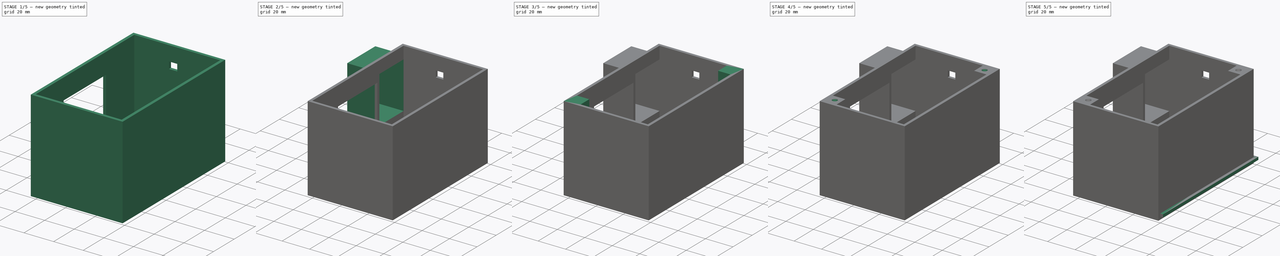
[diagram: build sequence overview — one tinted view per stage of 5, left to right]
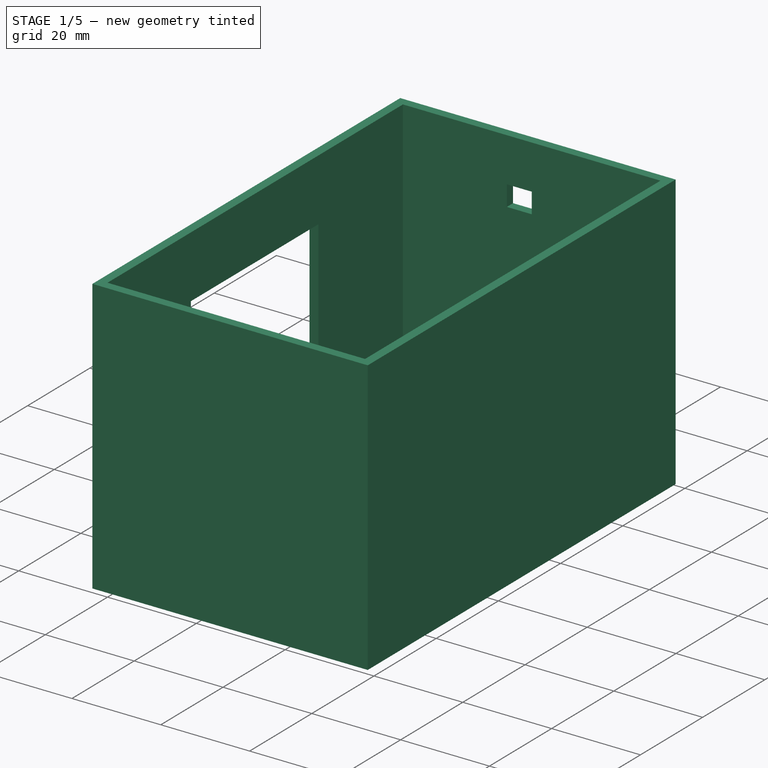
[diagram: stage 1 of 5 — iso view after this stage's code; geometry added in this stage tinted green]
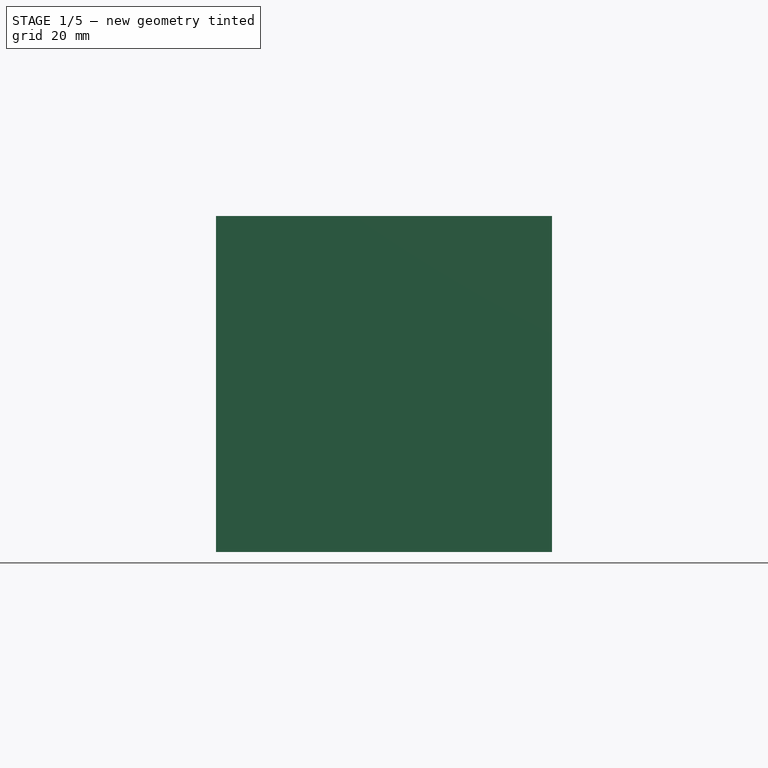
[diagram: stage 1 of 5 — front view after this stage's code; geometry added in this stage tinted green]
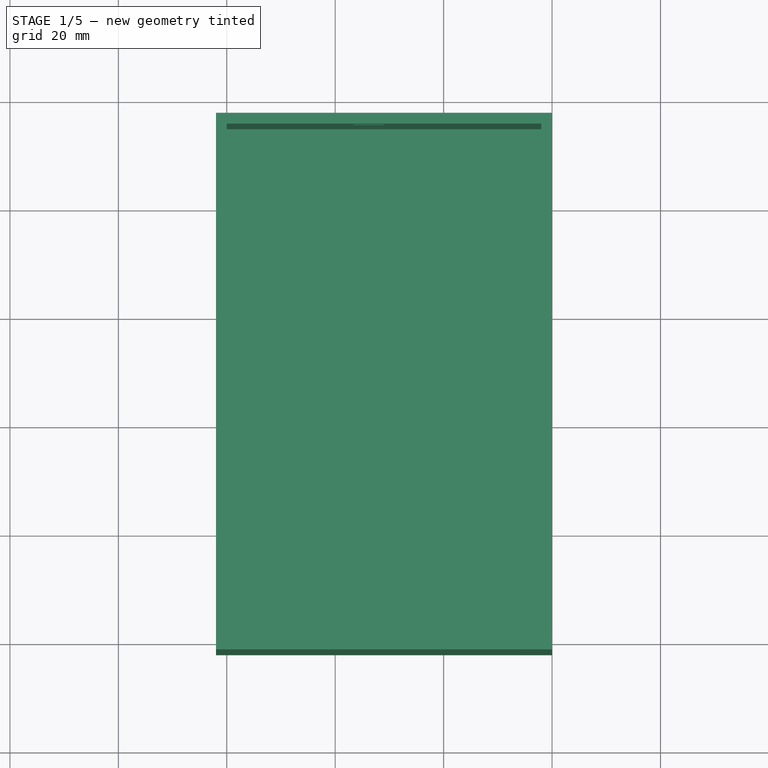
[diagram: stage 1 of 5 — top view after this stage's code; geometry added in this stage tinted green]
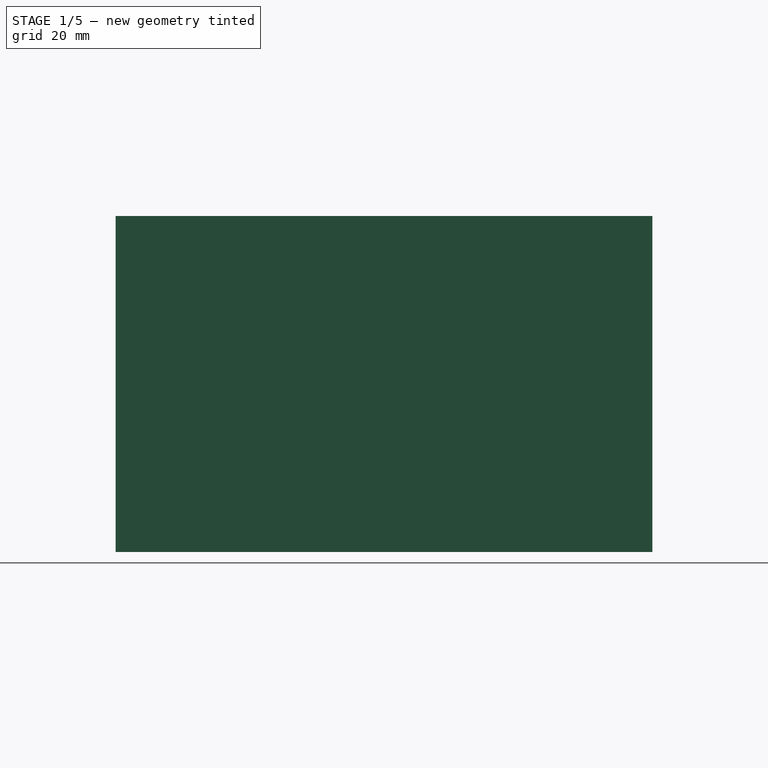
[diagram: stage 1 of 5 — right view after this stage's code; geometry added in this stage tinted green]
FCSTD DOCUMENT  (FreeCAD 1.0R38641 +468 (Git))
Label: air_quality_sensor
License: All rights reserved
LicenseURL: http://en.wikipedia.org/wiki/All_rights_reserved
objects: Sketcher::SketchObject×16, PartDesign::Pad×10, PartDesign::Pocket×6, PartDesign::Body×2, PartDesign::Draft×2, PartDesign::Chamfer×2, PartDesign::Thickness×1, PartDesign::Fillet×1
note: 100 computed .brp shape members not serialized (recipe doc carries the construction recipe); baked Part::Feature solids carry a one-line shape summary decoded from their .brp

FEATURE [Sketcher::SketchObject] Sketch
  ArcFitTolerance = 1e-06
  AttachmentSupport = -> [XY_Plane]
  FullyConstrained = true
  MakeInternals = false
  MapMode = 5
  sketch-geometry (4):
    g0: LineSegment StartX=0 StartY=0 StartZ=0 EndX=58 EndY=0 EndZ=0
    g1: LineSegment StartX=58 StartY=0 StartZ=0 EndX=58 EndY=95 EndZ=0
    g2: LineSegment StartX=58 StartY=95 StartZ=0 EndX=0 EndY=95 EndZ=0
    g3: LineSegment StartX=0 StartY=95 StartZ=0 EndX=0 EndY=0 EndZ=0
  constraints (11):
    c: Coincident(g0,g1)
    c: Coincident(g1,g2)
    c: Coincident(g2,g3)
    c: Coincident(g3,g0)
    c: Horizontal(g0)
    c: Horizontal(g2)
    c: Vertical(g1)
    c: Vertical(g3)
    c: Coincident(g0,g-1)
    c: Distance(g1,g1) = 95
    c: Distance(g2,g2) = 58
FEATURE [PartDesign::Pad] Pad
  Direction = (0,0,1)
  Length = 60
  Length2 = 10
  Profile = -> Sketch
  ReferenceAxis = -> Sketch [N_Axis]
  Refine = true
  Suppressed = false
  Type = 0
FEATURE [PartDesign::Thickness] Thickness
  Base = -> Pad [Face6]
  BaseFeature = -> Pad
  Intersection = false
  Join = 1
  Mode = 0
  Refine = true
  SupportTransform = false
  Suppressed = false
  Value = 2
FEATURE [Sketcher::SketchObject] Sketch002
  ArcFitTolerance = 1e-06
  FullyConstrained = true
  MakeInternals = false
  MapMode = 5
  Placement = pos=(0,97,0) rot=(0,0.707107,0.707107;3.14159rad)
  sketch-geometry (4):
    g0: LineSegment StartX=-29 StartY=50 StartZ=0 EndX=-29 EndY=45.4 EndZ=0
    g1: LineSegment StartX=-29 StartY=45.4 StartZ=0 EndX=-23.4 EndY=45.4 EndZ=0
    g2: LineSegment StartX=-23.4 StartY=45.4 StartZ=0 EndX=-23.4 EndY=50 EndZ=0
    g3: LineSegment StartX=-23.4 StartY=50 StartZ=0 EndX=-29 EndY=50 EndZ=0
  constraints (12):
    c: Coincident(g0,g1)
    c: Coincident(g1,g2)
    c: Coincident(g2,g3)
    c: Coincident(g3,g0)
    c: Vertical(g0)
    c: Vertical(g2)
    c: Horizontal(g1)
    c: Horizontal(g3)
    c: Distance(g1,g1) = 5.6
    c: Distance(g2,g2) = 4.6
    c: Distance(g0,g-4) = 22
    c: Distance(g2,g-3) = 30
FEATURE [PartDesign::Pocket] Pocket
  BaseFeature = -> Thickness
  Direction = (0,-1,2e-16)
  Length = 5
  Length2 = 5
  Profile = -> Sketch002
  ReferenceAxis = -> Sketch002 [N_Axis]
  Refine = true
  Suppressed = false
  Type = 2
FEATURE [Sketcher::SketchObject] Sketch003
  ArcFitTolerance = 1e-06
  AttachmentSupport = -> [Pocket]
  ExternalGeometry = -> [Pocket]
  FullyConstrained = true
  MakeInternals = false
  MapMode = 5
  Placement = pos=(-2,0,0) rot=(0.57735,-0.57735,-0.57735;2.0944rad)
  sketch-geometry (4):
    g0: LineSegment StartX=-67.8 StartY=46 StartZ=0 EndX=-67.8 EndY=7 EndZ=0
    g1: LineSegment StartX=-67.8 StartY=7 StartZ=0 EndX=-26.8 EndY=7 EndZ=0
    g2: LineSegment StartX=-26.8 StartY=7 StartZ=0 EndX=-26.8 EndY=46 EndZ=0
    g3: LineSegment StartX=-26.8 StartY=46 StartZ=0 EndX=-67.8 EndY=46 EndZ=0
  constraints (12):
    c: Coincident(g0,g1)
    c: Coincident(g1,g2)
    c: Coincident(g2,g3)
    c: Coincident(g3,g0)
    c: Vertical(g0)
    c: Vertical(g2)
    c: Horizontal(g1)
    c: Horizontal(g3)
    c: Distance(g3,g3) = 41
    c: Distance(g0,g0) = 39
    c: Distance(g0,g-5) = 29.2
    c: Distance(g0,g-6) = 9
FEATURE [PartDesign::Pocket] Pocket001
  BaseFeature = -> Pocket
  Direction = (1,0,0)
  Length = 5
  Length2 = 5
  Profile = -> Sketch003
  ReferenceAxis = -> Sketch003 [N_Axis]
  Refine = true
  Suppressed = false
  Type = 2
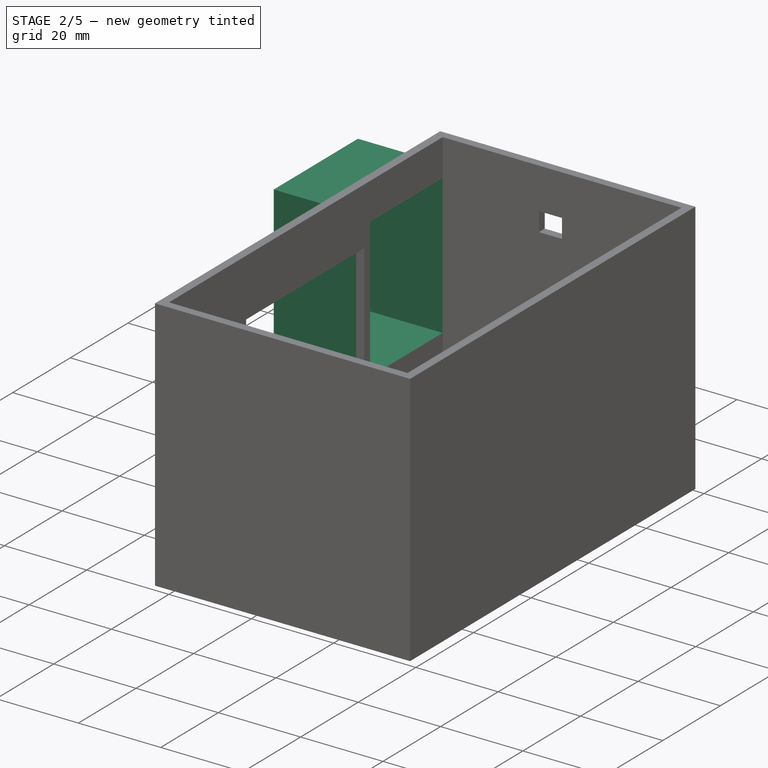
[diagram: stage 2 of 5 — iso view after this stage's code; geometry added in this stage tinted green]
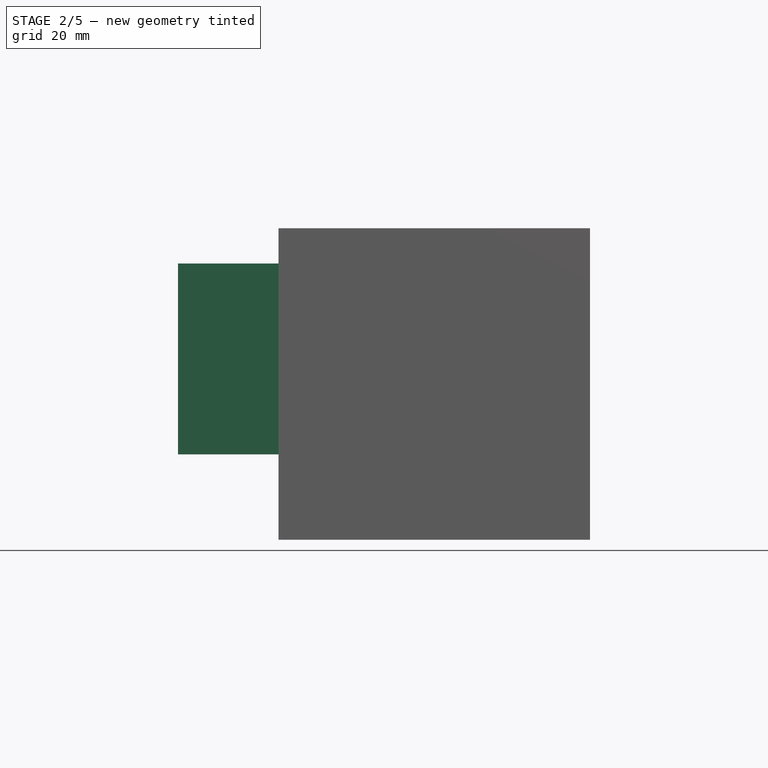
[diagram: stage 2 of 5 — front view after this stage's code; geometry added in this stage tinted green]
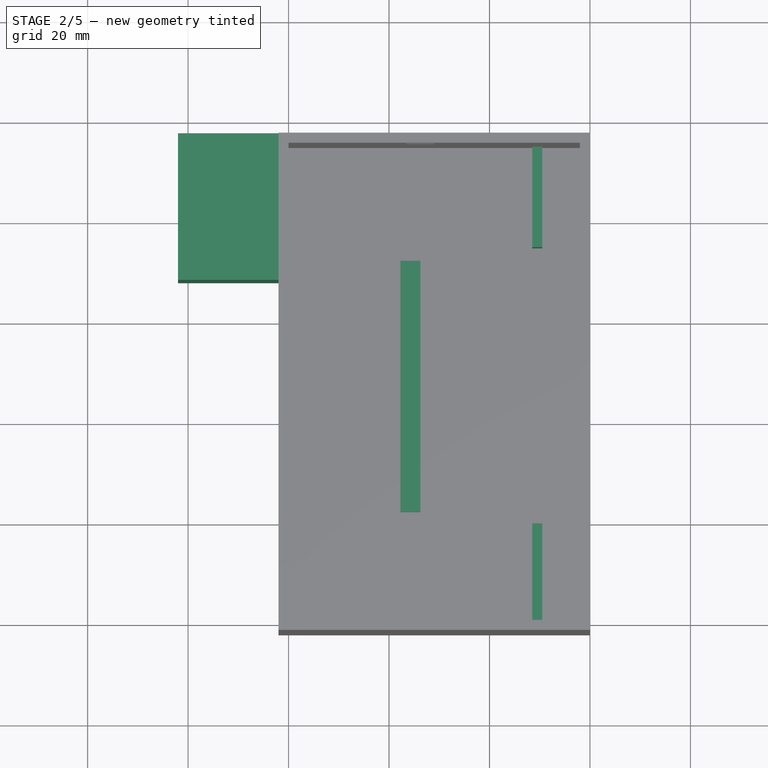
[diagram: stage 2 of 5 — top view after this stage's code; geometry added in this stage tinted green]
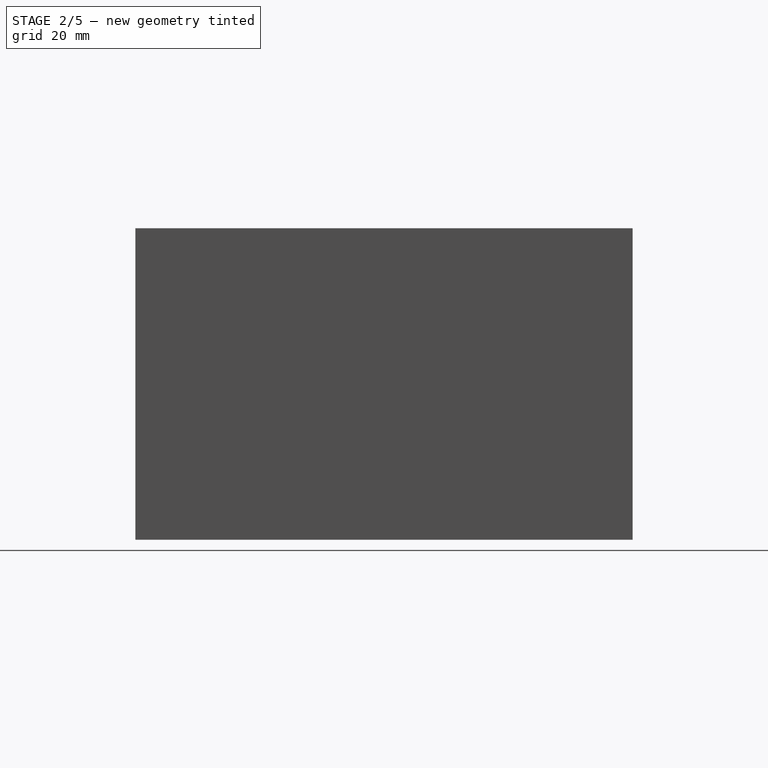
[diagram: stage 2 of 5 — right view after this stage's code; geometry added in this stage tinted green]
FEATURE [Sketcher::SketchObject] Sketch004
  ArcFitTolerance = 1e-06
  AttachmentSupport = -> [Pocket001]
  ExternalGeometry = -> [Pocket001]
  FullyConstrained = true
  MakeInternals = false
  MapMode = 5
  Placement = pos=(-2,0,0) rot=(0.57735,-0.57735,-0.57735;2.0944rad)
  sketch-geometry (4):
    g0: LineSegment StartX=-97 StartY=53 StartZ=0 EndX=-97 EndY=15 EndZ=0
    g1: LineSegment StartX=-97 StartY=15 StartZ=0 EndX=-67.8 EndY=15 EndZ=0
    g2: LineSegment StartX=-67.8 StartY=15 StartZ=0 EndX=-67.8 EndY=53 EndZ=0
    g3: LineSegment StartX=-67.8 StartY=53 StartZ=0 EndX=-97 EndY=53 EndZ=0
  constraints (12):
    c: Coincident(g0,g1)
    c: Coincident(g1,g2)
    c: Coincident(g2,g3)
    c: Coincident(g3,g0)
    c: Vertical(g0)
    c: Vertical(g2)
    c: Horizontal(g1)
    c: Horizontal(g3)
    c: PointOnObject(g0,g-4)
    c: PointOnObject(g1,g-5)
    c: DistanceY(g-5,g1) = 8
    c: DistanceY(g-5,g2) = 7
FEATURE [PartDesign::Pad] Pad002
  BaseFeature = -> Pocket001
  Direction = (-1,0,0)
  Length = 20
  Length2 = 10
  Profile = -> Sketch004
  ReferenceAxis = -> Sketch004 [N_Axis]
  Refine = true
  Suppressed = false
  Type = 0
FEATURE [Sketcher::SketchObject] Sketch005
  ArcFitTolerance = 1e-06
  AttachmentSupport = -> [Pad002]
  ExternalGeometry = -> [Pad002]
  FullyConstrained = true
  MakeInternals = false
  MapMode = 5
  Placement = pos=(-22,0,0) rot=(0.57735,-0.57735,-0.57735;2.0944rad)
  sketch-geometry (4):
    g0: LineSegment StartX=-95 StartY=51 StartZ=0 EndX=-95 EndY=17 EndZ=0
    g1: LineSegment StartX=-95 StartY=17 StartZ=0 EndX=-69.8 EndY=17 EndZ=0
    g2: LineSegment StartX=-69.8 StartY=17 StartZ=0 EndX=-69.8 EndY=51 EndZ=0
    g3: LineSegment StartX=-69.8 StartY=51 StartZ=0 EndX=-95 EndY=51 EndZ=0
  constraints (12):
    c: Coincident(g0,g1)
    c: Coincident(g1,g2)
    c: Coincident(g2,g3)
    c: Coincident(g3,g0)
    c: Vertical(g0)
    c: Vertical(g2)
    c: Horizontal(g1)
    c: Horizontal(g3)
    c: DistanceX(g-6,g0) = 2
    c: DistanceX(g2,g-4) = 2
    c: DistanceY(g0,g-6) = 2
    c: DistanceY(g-6,g0) = 2
FEATURE [PartDesign::Pocket] Pocket002
  BaseFeature = -> Pad002
  Direction = (1,0,0)
  Length = 5
  Length2 = 5
  Profile = -> Sketch005
  ReferenceAxis = -> Sketch005 [N_Axis]
  Refine = true
  Suppressed = false
  Type = 2
FEATURE [Sketcher::SketchObject] Sketch006
  ArcFitTolerance = 1e-06
  AttachmentSupport = -> [Pocket002]
  ExternalGeometry = -> [Pocket002]
  FullyConstrained = true
  MakeInternals = false
  MapMode = 5
  Placement = pos=(-22,0,0) rot=(0.57735,-0.57735,-0.57735;2.0944rad)
  sketch-geometry (4):
    g0: LineSegment StartX=-95 StartY=51 StartZ=0 EndX=-95 EndY=17 EndZ=0
    g1: LineSegment StartX=-95 StartY=17 StartZ=0 EndX=-69.8 EndY=17 EndZ=0
    g2: LineSegment StartX=-69.8 StartY=17 StartZ=0 EndX=-69.8 EndY=51 EndZ=0
    g3: LineSegment StartX=-69.8 StartY=51 StartZ=0 EndX=-95 EndY=51 EndZ=0
  constraints (9):
    c: Coincident(g0,g1)
    c: Coincident(g1,g2)
    c: Coincident(g2,g3)
    c: Coincident(g3,g0)
    c: Vertical(g2)
    c: Horizontal(g1)
    c: Coincident(g2,g-3)
    c: Coincident(g0,g-4)
    c: Coincident(g0,g-4)
FEATURE [PartDesign::Pad] Pad003
  BaseFeature = -> Pocket002
  Direction = (-1,0,0)
  Length = 2
  Length2 = 10
  Profile = -> Sketch006
  ReferenceAxis = -> Sketch006 [N_Axis]
  Refine = true
  Reversed = true
  Suppressed = false
  Type = 0
FEATURE [Sketcher::SketchObject] Sketch007
  ArcFitTolerance = 1e-06
  AttachmentSupport = -> [Pad003]
  ExternalGeometry = -> [Pad003]
  FullyConstrained = true
  MakeInternals = false
  MapMode = 5
  sketch-geometry (8):
    g0: LineSegment StartX=48.5 StartY=95 StartZ=0 EndX=48.5 EndY=75 EndZ=0
    g1: LineSegment StartX=48.5 StartY=75 StartZ=0 EndX=50.5 EndY=75 EndZ=0
    g2: LineSegment StartX=50.5 StartY=75 StartZ=0 EndX=50.5 EndY=95 EndZ=0
    g3: LineSegment StartX=50.5 StartY=95 StartZ=0 EndX=48.5 EndY=95 EndZ=0
    g4: LineSegment StartX=48.5 StartY=0 StartZ=0 EndX=50.5 EndY=0 EndZ=0
    g5: LineSegment StartX=50.5 StartY=0 StartZ=0 EndX=50.5 EndY=20 EndZ=0
    g6: LineSegment StartX=50.5 StartY=20 StartZ=0 EndX=48.5 EndY=20 EndZ=0
    g7: LineSegment StartX=48.5 StartY=20 StartZ=0 EndX=48.5 EndY=0 EndZ=0
  constraints (24):
    c: Coincident(g0,g1)
    c: Coincident(g1,g2)
    c: Coincident(g2,g3)
    c: Coincident(g3,g0)
    c: Vertical(g0)
    c: Vertical(g2)
    c: Horizontal(g1)
    c: Horizontal(g3)
    c: PointOnObject(g0,g-3)
    c: DistanceX(g1,g1) = 2
    c: DistanceX(g2,g-3) = 7.5
    c: Distance(g0,g0) = 20
    c: Coincident(g4,g5)
    c: Coincident(g5,g6)
    c: Coincident(g6,g7)
    c: Coincident(g7,g4)
    c: Horizontal(g4)
    c: Horizontal(g6)
    c: Vertical(g5)
    c: Vertical(g7)
    c: Distance(g6,g6) = 2
    c: Distance(g7,g7) = 20
    c: Distance(g-4,g5) = 7.5
    c: PointOnObject(g4,g-7)
FEATURE [PartDesign::Pad] Pad004
  BaseFeature = -> Pad003
  Direction = (0,0,1)
  Length = 15
  Length2 = 10
  Profile = -> Sketch007
  ReferenceAxis = -> Sketch007 [N_Axis]
  Refine = true
  Suppressed = false
  Type = 0
FEATURE [Sketcher::SketchObject] Sketch008
  ArcFitTolerance = 1e-06
  AttachmentSupport = -> [Pad004]
  ExternalGeometry = -> [Pad004]
  FullyConstrained = false
  MakeInternals = false
  MapMode = 5
  sketch-geometry (6):
    g0: LineSegment StartX=22.25 StartY=72.5 StartZ=0 EndX=22.25 EndY=22.5 EndZ=0
    g1: LineSegment StartX=22.25 StartY=22.5 StartZ=0 EndX=26.25 EndY=22.5 EndZ=0
    g2: LineSegment StartX=26.25 StartY=22.5 StartZ=0 EndX=26.25 EndY=72.5 EndZ=0
    g3: LineSegment StartX=26.25 StartY=72.5 StartZ=0 EndX=22.25 EndY=72.5 EndZ=0
    g4: LineSegment [constr] StartX=24.25 StartY=79.4667 StartZ=0 EndX=24.25 EndY=15.5333 EndZ=0
    g5: LineSegment [constr] StartX=9.96063 StartY=47.5 StartZ=0 EndX=45.0873 EndY=47.5 EndZ=0
  constraints (13):
    c: Coincident(g0,g1)
    c: Coincident(g1,g2)
    c: Coincident(g2,g3)
    c: Coincident(g3,g0)
    c: Vertical(g2)
    c: Horizontal(g1)
    c: Distance(g3,g3) = 4
    c: Symmetric(g0,g2,g4)
    c: Distance(g2,g2) = 50
    c: Symmetric(g-4,g-5,g4)
    c: Symmetric(g4,g4,g5)
    c: Symmetric(g-5,g-1,g5)
    c: Symmetric(g0,g0,g5)
FEATURE [PartDesign::Pad] Pad005
  BaseFeature = -> Pad004
  Direction = (0,0,1)
  Length = 2.4
  Length2 = 10
  Profile = -> Sketch008
  ReferenceAxis = -> Sketch008 [N_Axis]
  Refine = true
  Suppressed = false
  Type = 0
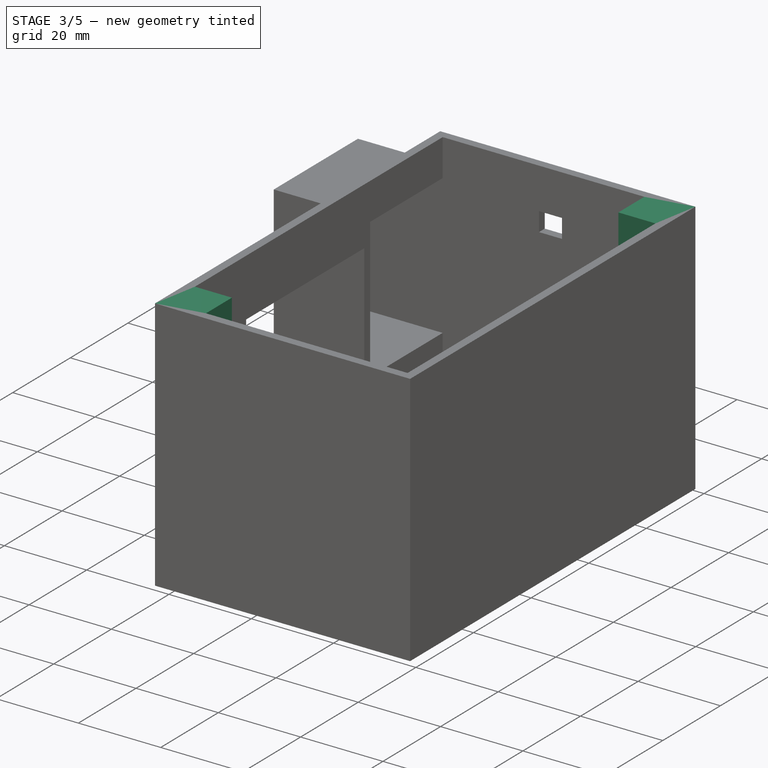
[diagram: stage 3 of 5 — iso view after this stage's code; geometry added in this stage tinted green]
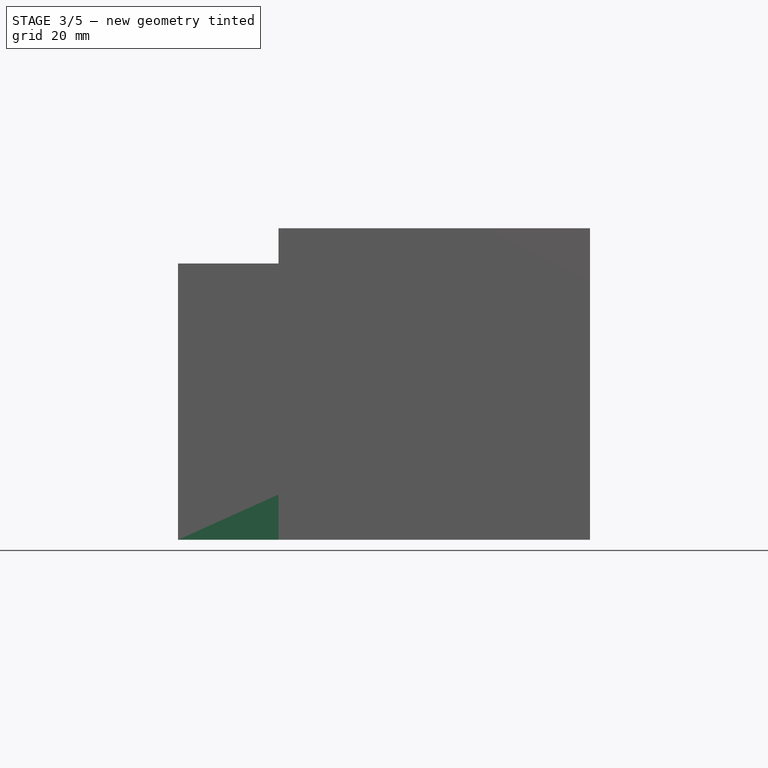
[diagram: stage 3 of 5 — front view after this stage's code; geometry added in this stage tinted green]
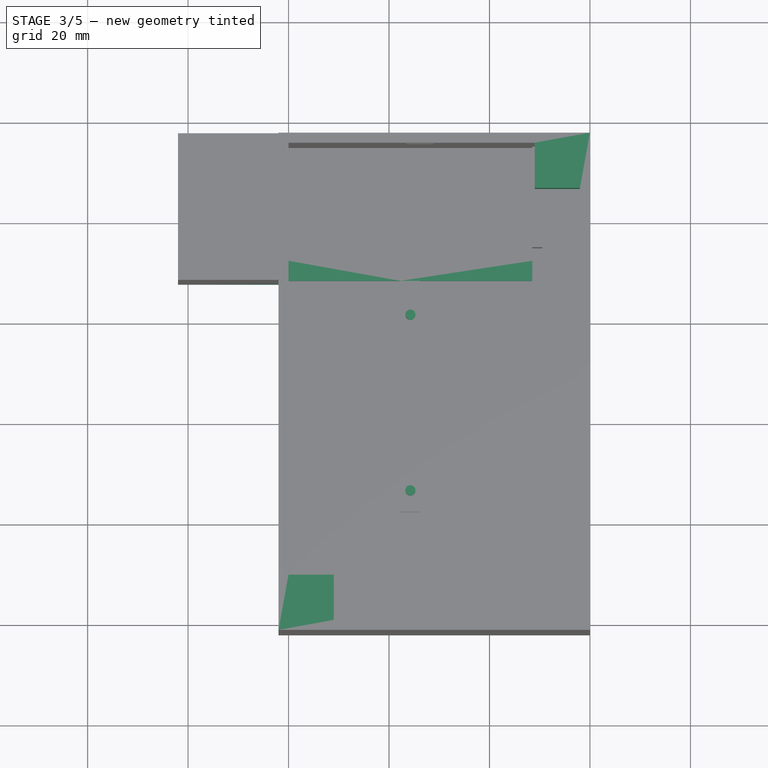
[diagram: stage 3 of 5 — top view after this stage's code; geometry added in this stage tinted green]
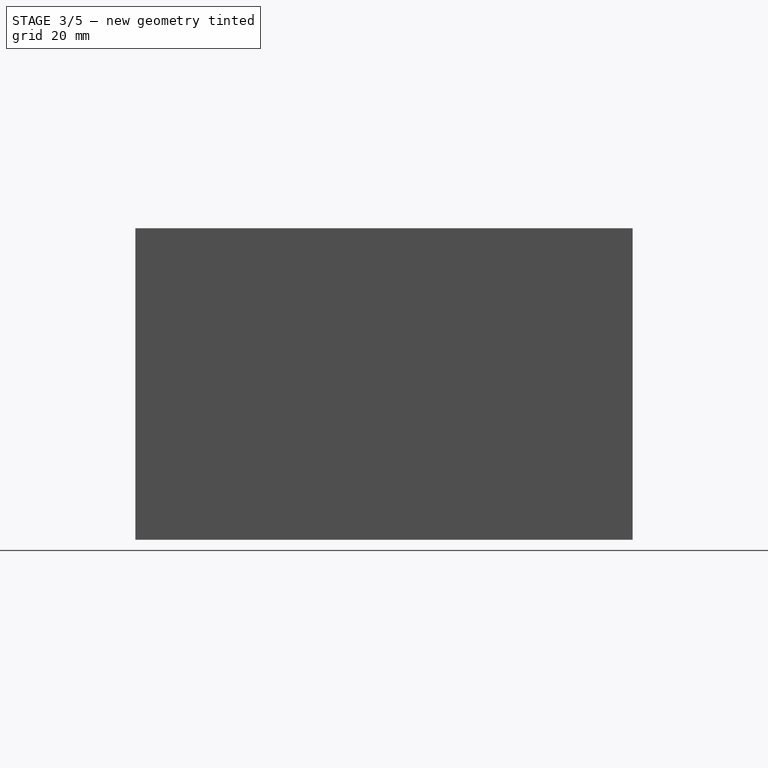
[diagram: stage 3 of 5 — right view after this stage's code; geometry added in this stage tinted green]
FEATURE [Sketcher::SketchObject] Sketch009
  ArcFitTolerance = 1e-06
  AttachmentSupport = -> [Pad005]
  ExternalGeometry = -> [Pad005]
  FullyConstrained = true
  MakeInternals = false
  MapMode = 5
  sketch-geometry (4):
    g0: LineSegment StartX=0 StartY=72.5 StartZ=0 EndX=0 EndY=68.5 EndZ=0
    g1: LineSegment StartX=0 StartY=68.5 StartZ=0 EndX=48.5 EndY=68.5 EndZ=0
    g2: LineSegment StartX=48.5 StartY=68.5 StartZ=0 EndX=48.5 EndY=72.5 EndZ=0
    g3: LineSegment StartX=48.5 StartY=72.5 StartZ=0 EndX=0 EndY=72.5 EndZ=0
  constraints (12):
    c: Coincident(g0,g1)
    c: Coincident(g1,g2)
    c: Coincident(g2,g3)
    c: Coincident(g3,g0)
    c: Vertical(g0)
    c: Vertical(g2)
    c: Horizontal(g1)
    c: Horizontal(g3)
    c: PointOnObject(g0,g-3)
    c: Distance(g2,g2) = 4
    c: PointOnObject(g-4,g3)
    c: DistanceX(g3,g3) = 48.5
FEATURE [PartDesign::Pad] Pad006
  BaseFeature = -> Pad005
  Direction = (0,0,1)
  Length = 2.4
  Length2 = 10
  Profile = -> Sketch009
  ReferenceAxis = -> Sketch009 [N_Axis]
  Refine = true
  Suppressed = false
  Type = 0
FEATURE [Sketcher::SketchObject] Sketch010
  ArcFitTolerance = 1e-06
  AttachmentSupport = -> [Pad006]
  ExternalGeometry = -> [Pad006]
  FullyConstrained = false
  MakeInternals = false
  MapMode = 5
  Placement = pos=(0,0,2.4) rot=(0,0,1;0rad)
  sketch-geometry (3):
    g0: Circle CenterX=24.25 CenterY=61.75 CenterZ=0 NormalX=0 NormalY=0 NormalZ=1 AngleXU=0 Radius=1
    g1: Circle CenterX=24.25 CenterY=26.75 CenterZ=0 NormalX=0 NormalY=0 NormalZ=1 AngleXU=0 Radius=1
    g2: LineSegment [constr] StartX=24.25 StartY=76.333 StartZ=0 EndX=24.25 EndY=16.4358 EndZ=0
  constraints (7):
    c: Diameter(g0) = 2
    c: Diameter(g1) = 2
    c: Symmetric(g-3,g-4,g2)
    c: PointOnObject(g0,g2)
    c: PointOnObject(g1,g2)
    c: DistanceY(g1,g0) = 35
    c: DistanceY(g-6,g1) = 4.25
FEATURE [PartDesign::Pad] Pad007
  BaseFeature = -> Pad006
  Direction = (0,0,1)
  Length = 3
  Length2 = 10
  Profile = -> Sketch010
  ReferenceAxis = -> Sketch010 [N_Axis]
  Refine = true
  Suppressed = false
  Type = 0
FEATURE [Sketcher::SketchObject] Sketch011
  ArcFitTolerance = 1e-06
  AttachmentSupport = -> [Pad007]
  ExternalGeometry = -> [Pad007]
  FullyConstrained = true
  MakeInternals = false
  MapMode = 5
  Placement = pos=(0,0,15) rot=(1,0,0;3.14159rad)
  sketch-geometry (8):
    g0: LineSegment StartX=-2 StartY=-67.8 StartZ=0 EndX=-22 EndY=-67.8 EndZ=0
    g1: LineSegment StartX=-22 StartY=-67.8 StartZ=0 EndX=-22 EndY=-97 EndZ=0
    g2: LineSegment StartX=-22 StartY=-97 StartZ=0 EndX=-2 EndY=-97 EndZ=0
    g3: LineSegment StartX=-2 StartY=-97 StartZ=0 EndX=-2 EndY=-95 EndZ=0
    g4: LineSegment StartX=-2 StartY=-95 StartZ=0 EndX=-20 EndY=-95 EndZ=0
    g5: LineSegment StartX=-20 StartY=-95 StartZ=0 EndX=-20 EndY=-69.8 EndZ=0
    g6: LineSegment StartX=-20 StartY=-69.8 StartZ=0 EndX=-2 EndY=-69.8 EndZ=0
    g7: LineSegment StartX=-2 StartY=-69.8 StartZ=0 EndX=-2 EndY=-67.8 EndZ=0
  constraints (19):
    c: Coincident(g-3,g0)
    c: Coincident(g0,g-4)
    c: Coincident(g0,g1)
    c: Coincident(g1,g-6)
    c: Coincident(g1,g2)
    c: Coincident(g2,g-6)
    c: Coincident(g2,g3)
    c: Symmetric(g-5,g-5,g3)
    c: Coincident(g3,g4)
    c: Horizontal(g4)
    c: Coincident(g4,g5)
    c: Vertical(g5)
    c: Coincident(g5,g6)
    c: Horizontal(g6)
    c: Coincident(g6,g7)
    c: Coincident(g7,g0)
    c: Vertical(g7)
    c: DistanceY(g5,g0) = 2
    c: DistanceX(g1,g4) = 2
FEATURE [PartDesign::Pad] Pad008
  BaseFeature = -> Pad007
  Direction = (0,0,-1)
  Length = 17
  Length2 = 10
  Profile = -> Sketch011
  ReferenceAxis = -> Sketch011 [N_Axis]
  Refine = true
  Suppressed = false
  Type = 0
FEATURE [Sketcher::SketchObject] Sketch012
  ArcFitTolerance = 1e-06
  AttachmentSupport = -> [Pad008]
  ExternalGeometry = -> [Pad008]
  FullyConstrained = true
  MakeInternals = false
  MapMode = 5
  Placement = pos=(0,0,60) rot=(0,0,1;0rad)
  sketch-geometry (8):
    g0: LineSegment StartX=58 StartY=95 StartZ=0 EndX=49 EndY=95 EndZ=0
    g1: LineSegment StartX=49 StartY=95 StartZ=0 EndX=49 EndY=86 EndZ=0
    g2: LineSegment StartX=49 StartY=86 StartZ=0 EndX=58 EndY=86 EndZ=0
    g3: LineSegment StartX=58 StartY=86 StartZ=0 EndX=58 EndY=95 EndZ=0
    g4: LineSegment StartX=0 StartY=0 StartZ=0 EndX=9 EndY=0 EndZ=0
    g5: LineSegment StartX=9 StartY=0 StartZ=0 EndX=9 EndY=9 EndZ=0
    g6: LineSegment StartX=9 StartY=9 StartZ=0 EndX=0 EndY=9 EndZ=0
    g7: LineSegment StartX=0 StartY=9 StartZ=0 EndX=0 EndY=0 EndZ=0
  constraints (22):
    c: Coincident(g0,g1)
    c: Coincident(g1,g2)
    c: Coincident(g2,g3)
    c: Coincident(g3,g0)
    c: Horizontal(g0)
    c: Horizontal(g2)
    c: Vertical(g1)
    c: Vertical(g3)
    c: Coincident(g0,g-4)
    c: Coincident(g4,g5)
    c: Coincident(g5,g6)
    c: Coincident(g6,g7)
    c: Coincident(g7,g4)
    c: Horizontal(g4)
    c: Horizontal(g6)
    c: Vertical(g5)
    c: Vertical(g7)
    c: Coincident(g4,g-1)
    c: DistanceX(g6,g6) = 9
    c: DistanceY(g5,g5) = 9
    c: DistanceY(g1,g1) = 9
    c: DistanceX(g2,g2) = 9
FEATURE [PartDesign::Pad] Pad009
  BaseFeature = -> Pad008
  Direction = (0,0,1)
  Length = 12
  Length2 = 10
  Profile = -> Sketch012
  ReferenceAxis = -> Sketch012 [N_Axis]
  Refine = true
  Reversed = true
  Suppressed = false
  Type = 0
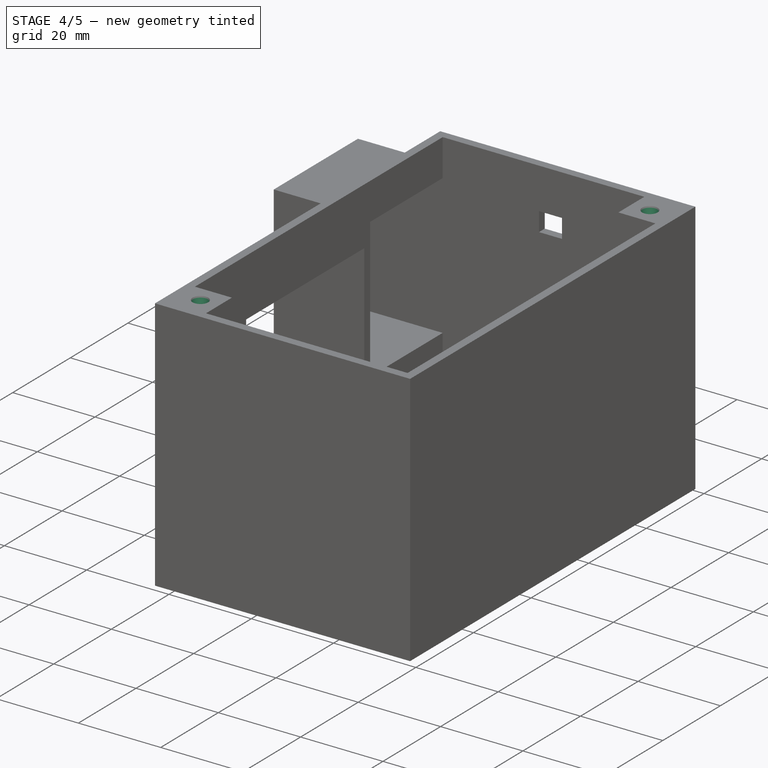
[diagram: stage 4 of 5 — iso view after this stage's code; geometry added in this stage tinted green]
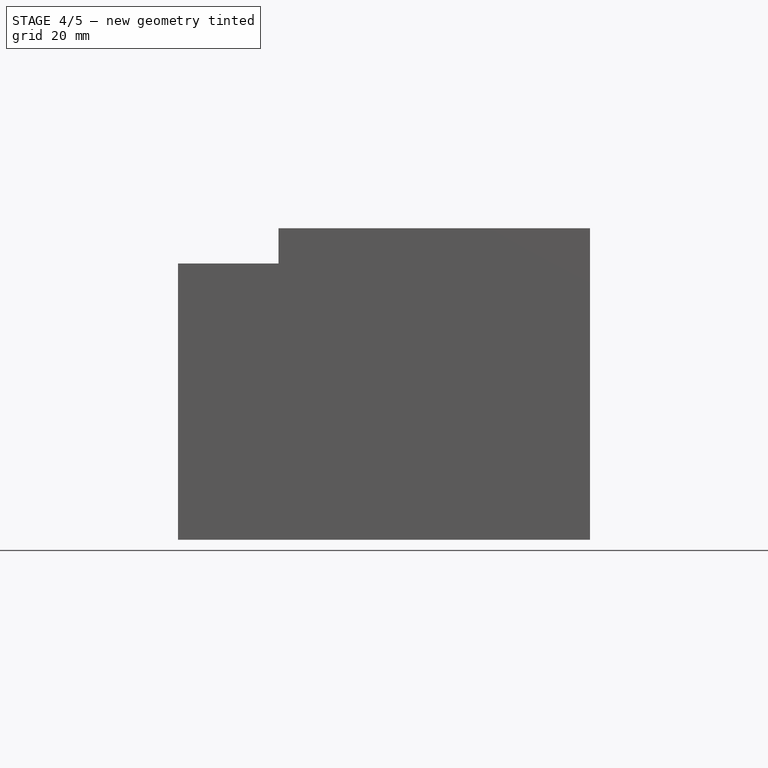
[diagram: stage 4 of 5 — front view after this stage's code; geometry added in this stage tinted green]
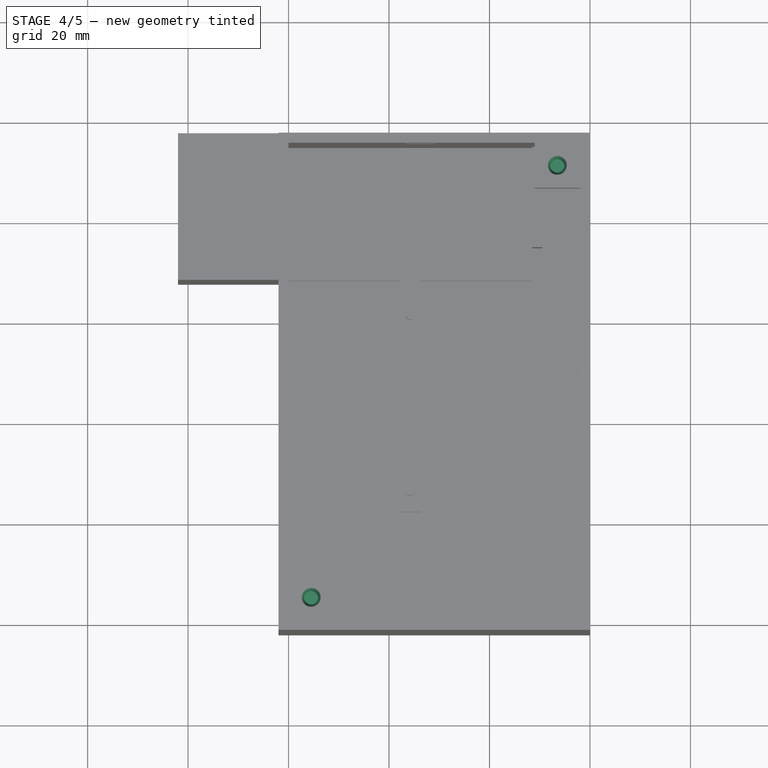
[diagram: stage 4 of 5 — top view after this stage's code; geometry added in this stage tinted green]
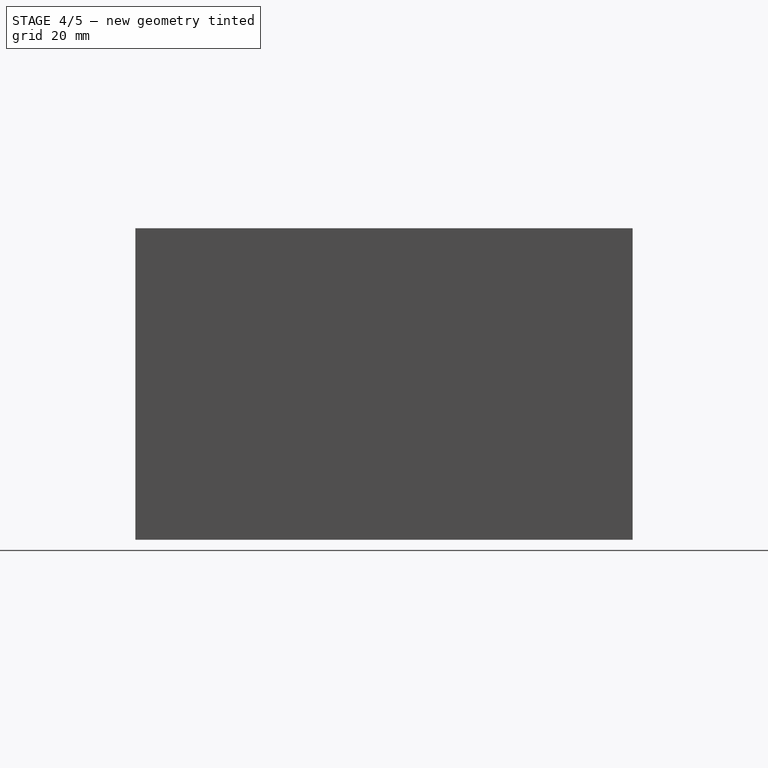
[diagram: stage 4 of 5 — right view after this stage's code; geometry added in this stage tinted green]
FEATURE [Sketcher::SketchObject] Sketch013
  ArcFitTolerance = 1e-06
  AttachmentSupport = -> [Pad009]
  ExternalGeometry = -> [Pad009]
  FullyConstrained = true
  MakeInternals = false
  MapMode = 5
  Placement = pos=(0,0,60) rot=(0,0,1;0rad)
  sketch-geometry (2):
    g0: Circle CenterX=53.5 CenterY=90.5 CenterZ=0 NormalX=0 NormalY=0 NormalZ=1 AngleXU=0 Radius=1.4
    g1: Circle CenterX=4.5 CenterY=4.5 CenterZ=0 NormalX=0 NormalY=0 NormalZ=1 AngleXU=0 Radius=1.4
  constraints (4):
    c: Diameter(g0) = 2.8
    c: Diameter(g1) = 2.8
    c: Symmetric(g-3,g-5,g0)
    c: Symmetric(g-9,g-8,g1)
FEATURE [PartDesign::Pocket] Pocket003
  BaseFeature = -> Pad009
  Direction = (0,0,-1)
  Length = 8.5
  Length2 = 5
  Profile = -> Sketch013
  ReferenceAxis = -> Sketch013 [N_Axis]
  Refine = true
  Suppressed = false
  Type = 0
FEATURE [PartDesign::Body] Body001  label="lid"
  AllowCompound = false
  Group = -> [Sketch014,Pad010,Sketch015,Pocket004]
  Origin = -> Origin001
  Placement = pos=(-2,-2,60) rot=(0,0,1;0rad)
  Tip = -> Pocket004
FEATURE [PartDesign::Draft] Draft
  Angle = 25
  Base = -> Pocket003 [Face37]
  BaseFeature = -> Pocket003
  Refine = true
  Reversed = true
  SupportTransform = false
  Suppressed = false
FEATURE [PartDesign::Draft] Draft001
  Angle = 25
  Base = -> Draft [Face36]
  BaseFeature = -> Draft
  Refine = true
  Reversed = true
  SupportTransform = false
  Suppressed = false
FEATURE [PartDesign::Chamfer] Chamfer
  Angle = 45
  Base = -> Draft001 [Edge24]
  BaseFeature = -> Draft001
  ChamferType = 1
  FlipDirection = false
  Refine = true
  Size = 0.5
  Size2 = 1.5
  SupportTransform = false
  Suppressed = false
  UseAllEdges = false
FEATURE [PartDesign::Chamfer] Chamfer001
  Angle = 45
  Base = -> Chamfer [Edge14]
  BaseFeature = -> Chamfer
  ChamferType = 1
  FlipDirection = false
  Refine = true
  Size = 0.5
  Size2 = 1.5
  SupportTransform = false
  Suppressed = false
  UseAllEdges = false
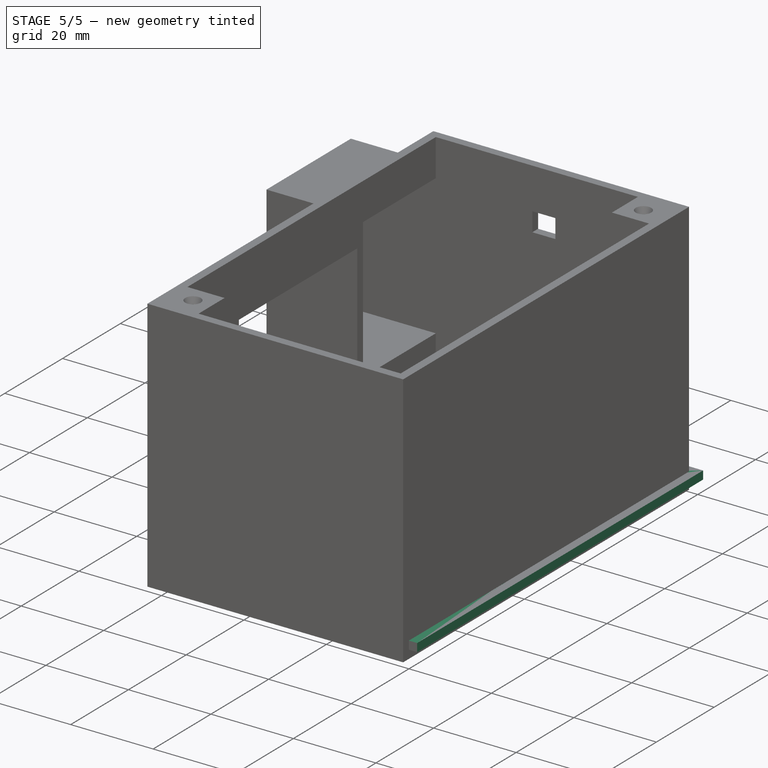
[diagram: stage 5 of 5 — iso view after this stage's code; geometry added in this stage tinted green]
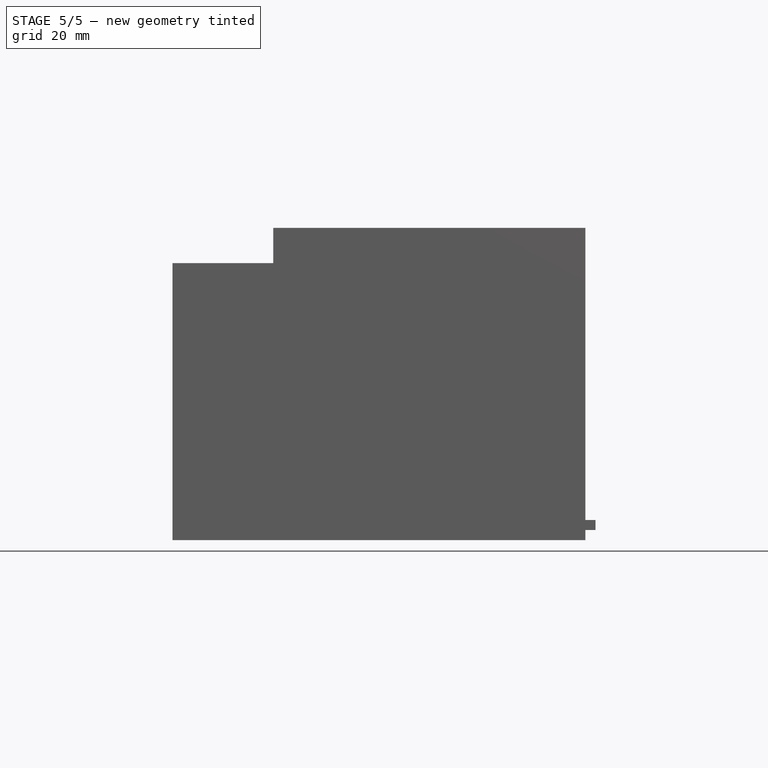
[diagram: stage 5 of 5 — front view after this stage's code; geometry added in this stage tinted green]
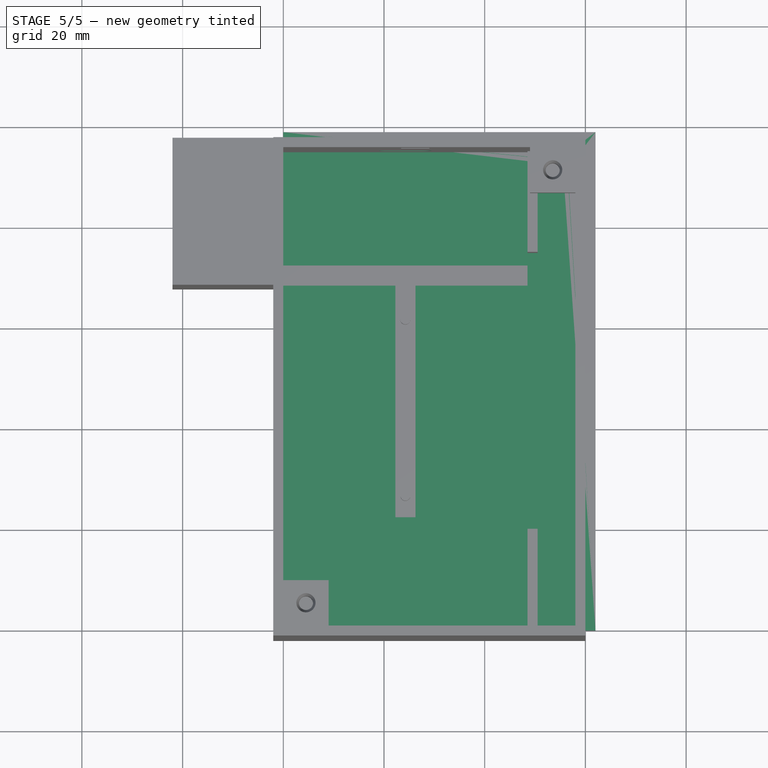
[diagram: stage 5 of 5 — top view after this stage's code; geometry added in this stage tinted green]
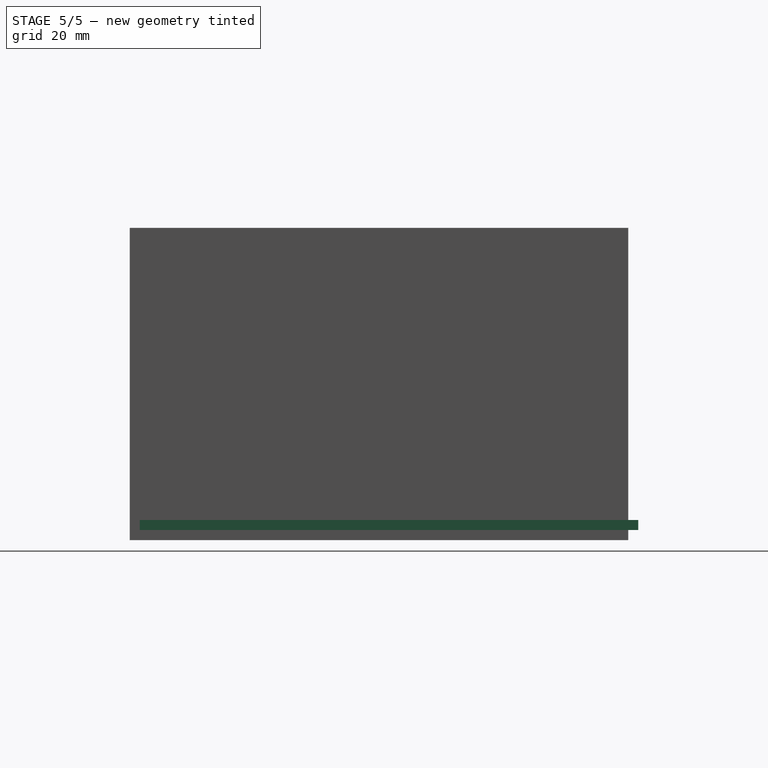
[diagram: stage 5 of 5 — right view after this stage's code; geometry added in this stage tinted green]
FEATURE [Sketcher::SketchObject] Sketch014
  ArcFitTolerance = 1e-06
  AttachmentSupport = -> [XY_Plane001]
  FullyConstrained = true
  MakeInternals = false
  MapMode = 5
  sketch-geometry (4):
    g0: LineSegment StartX=0 StartY=0 StartZ=0 EndX=62 EndY=0 EndZ=0
    g1: LineSegment StartX=62 StartY=0 StartZ=0 EndX=62 EndY=99 EndZ=0
    g2: LineSegment StartX=62 StartY=99 StartZ=0 EndX=0 EndY=99 EndZ=0
    g3: LineSegment StartX=0 StartY=99 StartZ=0 EndX=0 EndY=0 EndZ=0
  constraints (11):
    c: Coincident(g0,g1)
    c: Coincident(g1,g2)
    c: Coincident(g2,g3)
    c: Coincident(g3,g0)
    c: Horizontal(g0)
    c: Horizontal(g2)
    c: Vertical(g1)
    c: Vertical(g3)
    c: Coincident(g0,g-1)
    c: DistanceX(g2,g2) = 62
    c: Distance(g1,g1) = 99
FEATURE [PartDesign::Pad] Pad010
  Direction = (0,0,1)
  Length = 2
  Length2 = 10
  Profile = -> Sketch014
  ReferenceAxis = -> Sketch014 [N_Axis]
  Refine = true
  Suppressed = false
  Type = 0
FEATURE [Sketcher::SketchObject] Sketch015
  ArcFitTolerance = 1e-06
  AttachmentSupport = -> [Pad010]
  ExternalGeometry = -> [Pad010]
  FullyConstrained = true
  MakeInternals = false
  MapMode = 5
  Placement = pos=(0,0,2) rot=(0,0,1;0rad)
  sketch-geometry (10):
    g0: LineSegment [constr] StartX=2 StartY=11 StartZ=0 EndX=2 EndY=2 EndZ=0
    g1: LineSegment [constr] StartX=2 StartY=2 StartZ=0 EndX=11 EndY=2 EndZ=0
    g2: LineSegment [constr] StartX=11 StartY=2 StartZ=0 EndX=11 EndY=11 EndZ=0
    g3: LineSegment [constr] StartX=11 StartY=11 StartZ=0 EndX=2 EndY=11 EndZ=0
    g4: LineSegment [constr] StartX=51 StartY=97 StartZ=0 EndX=51 EndY=88 EndZ=0
    g5: LineSegment [constr] StartX=51 StartY=88 StartZ=0 EndX=60 EndY=88 EndZ=0
    g6: LineSegment [constr] StartX=60 StartY=88 StartZ=0 EndX=60 EndY=97 EndZ=0
    g7: LineSegment [constr] StartX=60 StartY=97 StartZ=0 EndX=51 EndY=97 EndZ=0
    g8: Circle CenterX=55.5 CenterY=92.5 CenterZ=0 NormalX=0 NormalY=0 NormalZ=1 AngleXU=0 Radius=1.2
    g9: Circle CenterX=6.5 CenterY=6.5 CenterZ=0 NormalX=0 NormalY=0 NormalZ=1 AngleXU=0 Radius=1.2
  constraints (28):
    c: Coincident(g0,g1)
    c: Coincident(g1,g2)
    c: Coincident(g2,g3)
    c: Coincident(g3,g0)
    c: Vertical(g0)
    c: Vertical(g2)
    c: Horizontal(g1)
    c: Horizontal(g3)
    c: Coincident(g4,g5)
    c: Coincident(g5,g6)
    c: Coincident(g6,g7)
    c: Coincident(g7,g4)
    c: Vertical(g4)
    c: Vertical(g6)
    c: Horizontal(g5)
    c: Horizontal(g7)
    c: Distance(g0,g-6) = 2
    c: Distance(g1,g-5) = 2
    c: DistanceY(g2,g2) = 9
    c: Distance(g1,g1) = 9
    c: Distance(g4,g-4) = 2
    c: DistanceY(g6,g6) = 9
    c: DistanceX(g6,g-4) = 2
    c: Distance(g5,g5) = 9
    c: Diameter(g9) = 2.4
    c: Diameter(g8) = 2.4
    c: Symmetric(g4,g5,g8)
    c: Symmetric(g0,g1,g9)
FEATURE [PartDesign::Pocket] Pocket004
  BaseFeature = -> Pad010
  Direction = (0,0,-1)
  Length = 2
  Length2 = 5
  Profile = -> Sketch015
  ReferenceAxis = -> Sketch015 [N_Axis]
  Refine = true
  Suppressed = false
  Type = 0
FEATURE [Sketcher::SketchObject] Sketch016
  ArcFitTolerance = 1e-06
  AttachmentSupport = -> [Chamfer001]
  FullyConstrained = true
  MakeInternals = false
  MapMode = 5
  Placement = pos=(0,95,0) rot=(1,0,0;1.5708rad)
  sketch-geometry (4):
    g0: LineSegment StartX=19 StartY=21 StartZ=0 EndX=19 EndY=15 EndZ=0
    g1: LineSegment StartX=19 StartY=15 StartZ=0 EndX=29.4 EndY=15 EndZ=0
    g2: LineSegment StartX=29.4 StartY=15 StartZ=0 EndX=29.4 EndY=21 EndZ=0
    g3: LineSegment StartX=29.4 StartY=21 StartZ=0 EndX=19 EndY=21 EndZ=0
  constraints (12):
    c: Coincident(g0,g1)
    c: Coincident(g1,g2)
    c: Coincident(g2,g3)
    c: Coincident(g3,g0)
    c: Vertical(g0)
    c: Vertical(g2)
    c: Horizontal(g1)
    c: Horizontal(g3)
    c: DistanceY(g0,g0) = 6
    c: DistanceX(g1,g1) = 10.4
    c: Distance(g0,g-2) = 19
    c: Distance(g1,g-1) = 15
FEATURE [PartDesign::Pocket] Pocket005
  BaseFeature = -> Chamfer001
  Direction = (0,1,-2e-16)
  Length = 5
  Length2 = 5
  Profile = -> Sketch016
  ReferenceAxis = -> Sketch016 [N_Axis]
  Refine = true
  Suppressed = false
  Type = 0
FEATURE [PartDesign::Fillet] Fillet
  Base = -> Pocket005 [Edge112,Edge109,Edge111,Edge110]
  BaseFeature = -> Pocket005
  Radius = 2
  Refine = true
  SupportTransform = false
  Suppressed = false
  UseAllEdges = false
FEATURE [PartDesign::Body] Body  label="housing"
  AllowCompound = false
  Group = -> [Sketch,Pad,Thickness,Sketch002,Pocket,Sketch003,Pocket001,Sketch004,Pad002,Sketch005,Pocket002,Sketch006,Pad003,Sketch007,Pad004,Sketch008,Pad005,Sketch009,Pad006,Sketch010,Pad007,Sketch011,Pad008,Sketch012,Pad009,Sketch013,Pocket003,Draft,Draft001,Chamfer,Chamfer001,Sketch016,Pocket005,Fillet]
  Origin = -> Origin
  Tip = -> Fillet
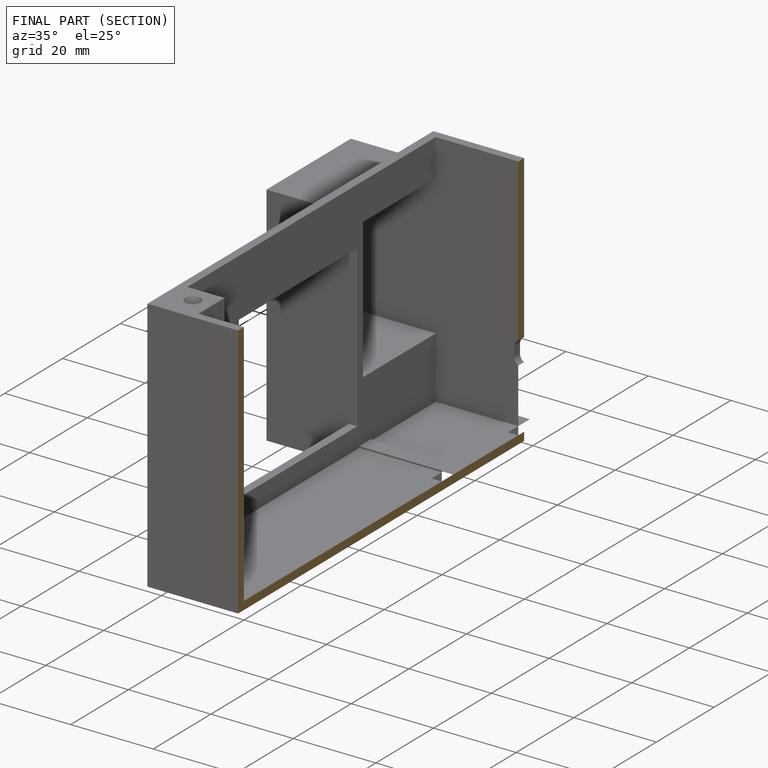
[diagram: finished part — half-section view (interior)]
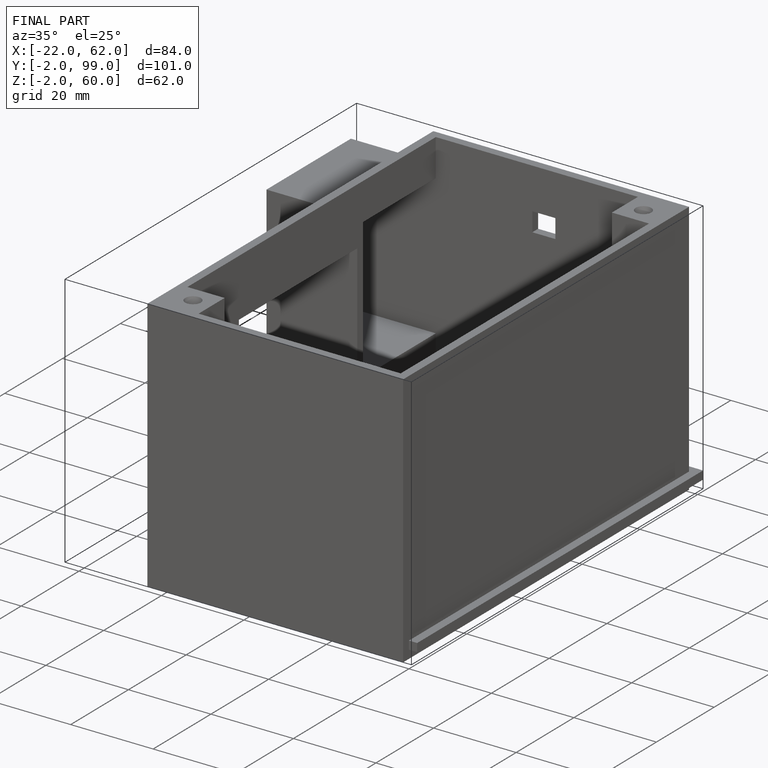
[diagram: finished part — iso view with bounding-box wireframe]
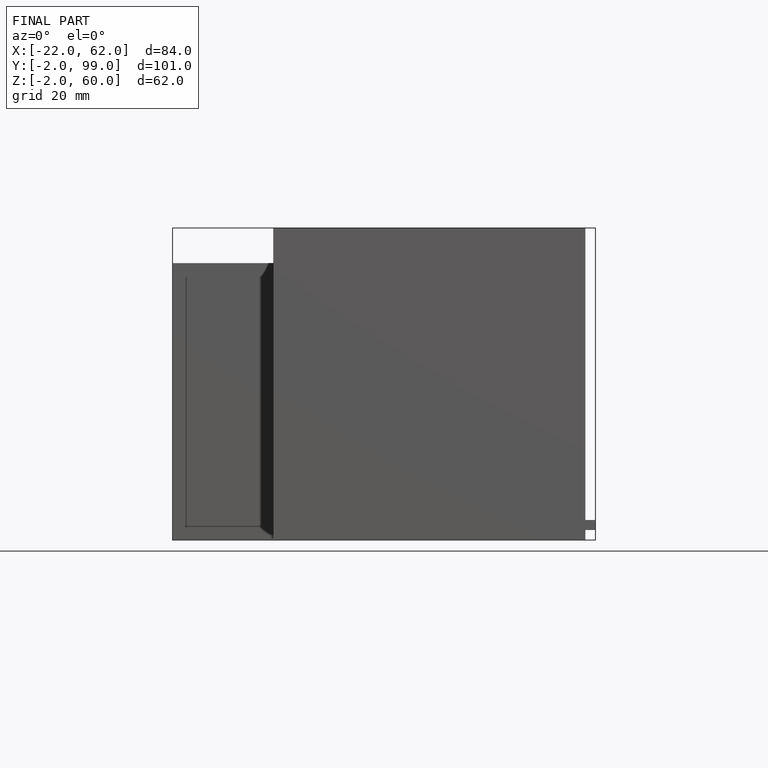
[diagram: finished part — front view with bounding-box wireframe]
